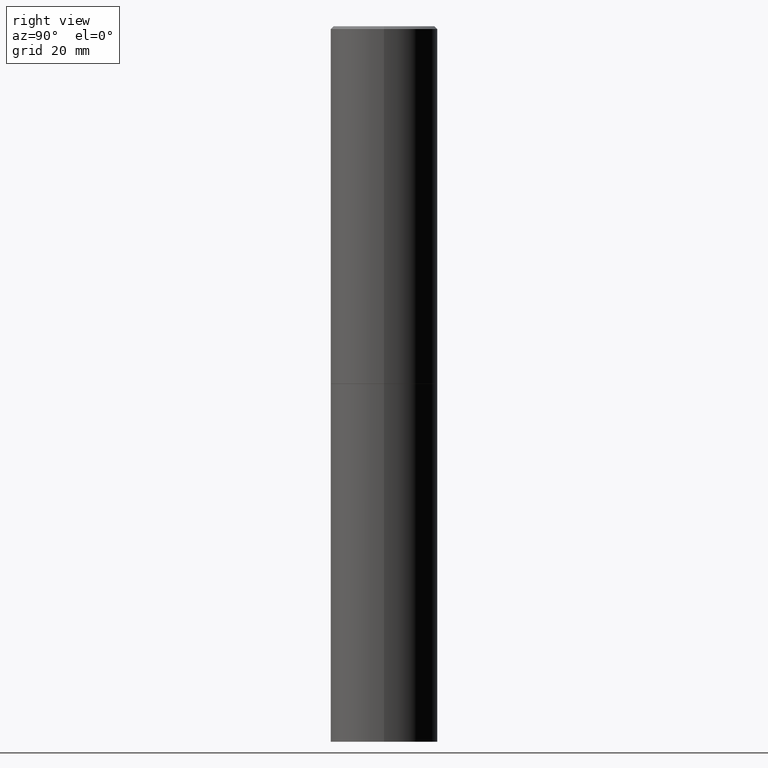
[diagram: clean part render]
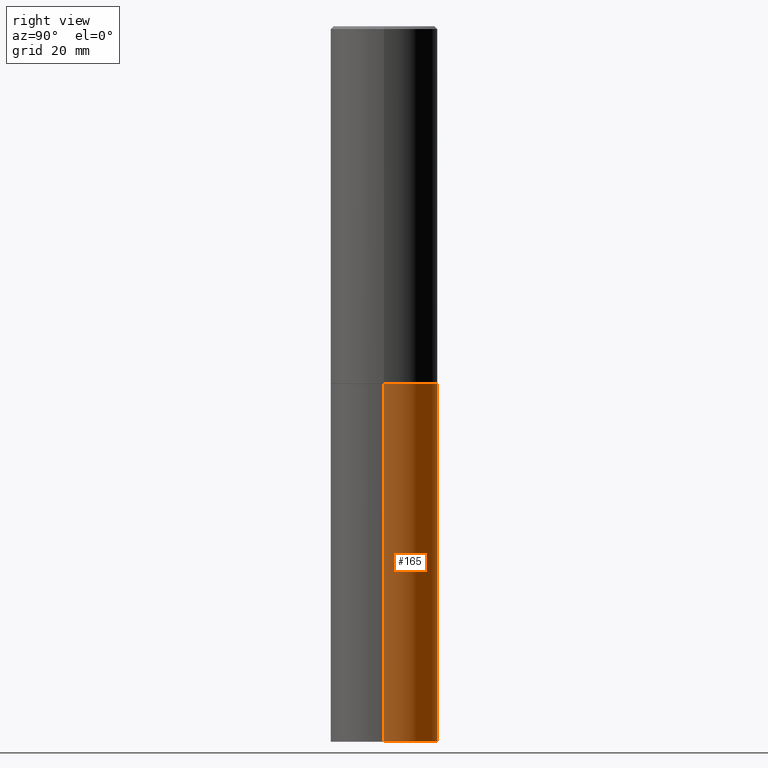
[diagram: same view with one face highlighted and labeled with its STEP entity id]
A machine part, right view. The second image highlights one B-rep face of the part: STEP entity #165.
In plain terms, the highlighted cylindrical surface (partial cylindrical patch) has radius 9.525 mm, axis along (-0, 0, 1).
Its self-contained STEP definition (entity closure, byte-faithful):
#8 = DIRECTION ( 'NONE',  ( 1.000000000000000000, -6.982962677686265922E-15, 4.876176775795935793E-29 ) ) ;
#11 = LINE ( 'NONE', #322, #63 ) ;
#23 = DIRECTION ( 'NONE',  ( -2.445468806185136877E-29, 3.491481338843145188E-15, 1.000000000000000000 ) ) ;
#34 = DIRECTION ( 'NONE',  ( 1.000000000000000000, -6.982962677686266711E-15, 0.000000000000000000 ) ) ;
#63 = VECTOR ( 'NONE', #64, 39.37007874015748143 ) ;
#64 = DIRECTION ( 'NONE',  ( -2.445468806185136877E-29, 3.491481338843145188E-15, 1.000000000000000000 ) ) ;
#90 = EDGE_CURVE ( 'NONE', #272, #323, #127, .T. ) ;
#95 = DIRECTION ( 'NONE',  ( -2.445468806185136597E-29, 3.491481338843145583E-15, 1.000000000000000000 ) ) ;
#100 = VERTEX_POINT ( 'NONE', #203 ) ;
#102 = CARTESIAN_POINT ( 'NONE',  ( -0.3750000000000000555, -1.042851976156142014E-14, -2.500000000000000000 ) ) ;
#110 = CARTESIAN_POINT ( 'NONE',  ( 1.222734403092568523E-28, -1.745740669421572989E-14, -5.000000000000000000 ) ) ;
#125 = ORIENTED_EDGE ( 'NONE', *, *, #290, .F. ) ;
#127 = CIRCLE ( 'NONE', #332, 0.3750000000000000555 ) ;
#142 = CARTESIAN_POINT ( 'NONE',  ( 0.3750000000000000555, -2.007601769834807990E-14, -5.000000000000000000 ) ) ;
#155 = DIRECTION ( 'NONE',  ( -2.445468806185136597E-29, 3.491481338843145583E-15, 1.000000000000000000 ) ) ;
#159 = DIRECTION ( 'NONE',  ( 1.000000000000000000, -6.982962677686264344E-15, 0.000000000000000000 ) ) ;
#163 = CYLINDRICAL_SURFACE ( 'NONE', #258, 0.3750000000000000555 ) ;
#165 = ADVANCED_FACE ( 'NONE', ( #295 ), #163, .T. ) ;
#170 = ORIENTED_EDGE ( 'NONE', *, *, #269, .T. ) ;
#171 = CIRCLE ( 'NONE', #177, 0.3750000000000000555 ) ;
#177 = AXIS2_PLACEMENT_3D ( 'NONE', #215, #95, #159 ) ;
#203 = CARTESIAN_POINT ( 'NONE',  ( 0.3750000000000000555, -1.134731435124021338E-14, -2.500000000000000000 ) ) ;
#215 = CARTESIAN_POINT ( 'NONE',  ( 6.113672015462842613E-29, -8.728703347107864943E-15, -2.500000000000000000 ) ) ;
#217 = ORIENTED_EDGE ( 'NONE', *, *, #90, .T. ) ;
#222 = VECTOR ( 'NONE', #23, 39.37007874015748143 ) ;
#224 = CARTESIAN_POINT ( 'NONE',  ( -0.3750000000000000555, -1.042851976156142014E-14, -5.000000000000000000 ) ) ;
#237 = LINE ( 'NONE', #335, #222 ) ;
#249 = ORIENTED_EDGE ( 'NONE', *, *, #280, .F. ) ;
#258 = AXIS2_PLACEMENT_3D ( 'NONE', #266, #291, #8 ) ;
#266 = CARTESIAN_POINT ( 'NONE',  ( 0.000000000000000000, 0.000000000000000000, 0.000000000000000000 ) ) ;
#269 = EDGE_CURVE ( 'NONE', #323, #328, #11, .T. ) ;
#272 = VERTEX_POINT ( 'NONE', #142 ) ;
#280 = EDGE_CURVE ( 'NONE', #100, #328, #171, .T. ) ;
#290 = EDGE_CURVE ( 'NONE', #272, #100, #237, .T. ) ;
#291 = DIRECTION ( 'NONE',  ( -2.445468806185136597E-29, 3.491481338843145583E-15, 1.000000000000000000 ) ) ;
#293 = EDGE_LOOP ( 'NONE', ( #217, #170, #249, #125 ) ) ;
#295 = FACE_OUTER_BOUND ( 'NONE', #293, .T. ) ;
#322 = CARTESIAN_POINT ( 'NONE',  ( -0.3750000000000000555, 2.664535259100376091E-15, -1.844600658845589598E-29 ) ) ;
#323 = VERTEX_POINT ( 'NONE', #224 ) ;
#328 = VERTEX_POINT ( 'NONE', #102 ) ;
#332 = AXIS2_PLACEMENT_3D ( 'NONE', #110, #155, #34 ) ;
#335 = CARTESIAN_POINT ( 'NONE',  ( 0.3750000000000000555, -2.618611004132350016E-15, 1.828566290923476203E-29 ) ) ;